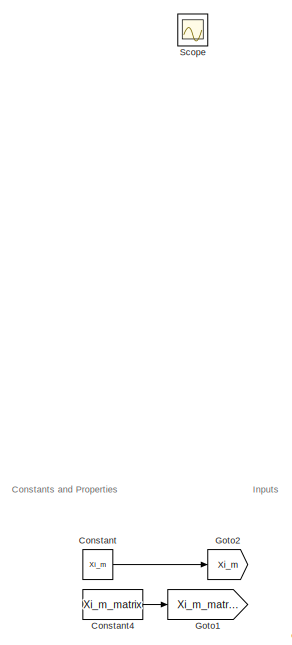
[diagram: root canvas - part 1/2, middle left region]
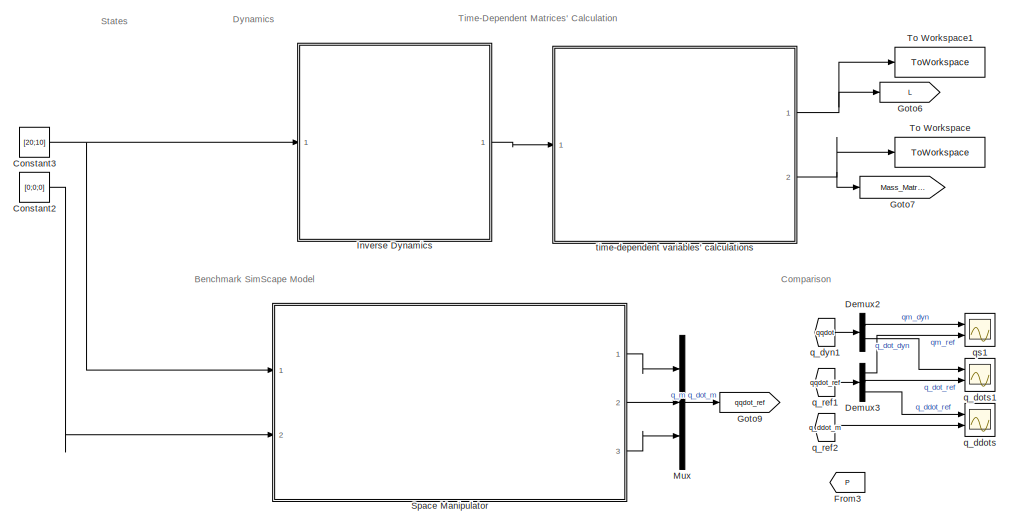
[diagram: root canvas - part 2/2, full width, bottom band]
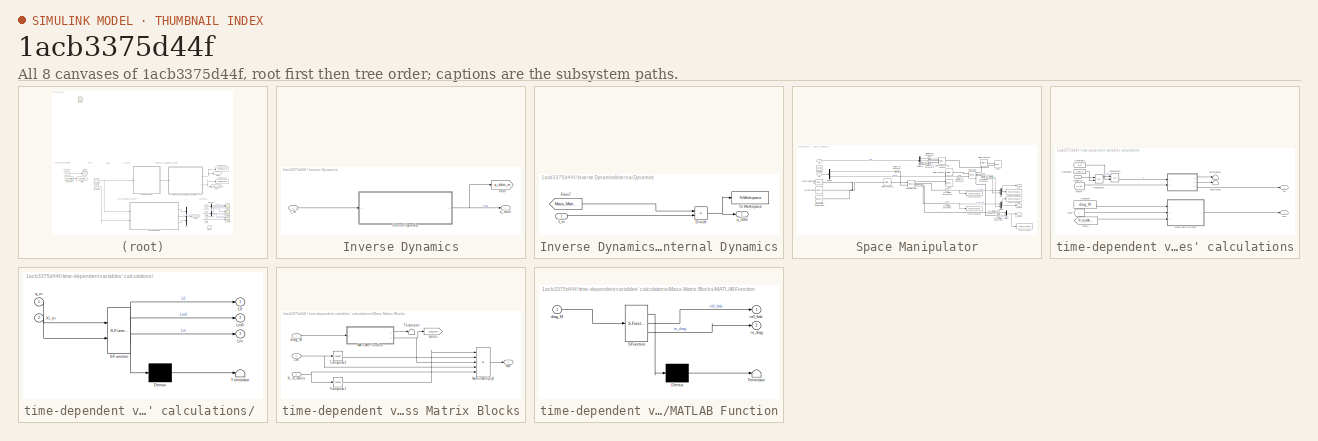
[diagram: thumbnail index - all 8 canvases of the model, root first then tree order]
MODEL slx_1acb3375d44f
KIND model
CONFIG AbsTol = auto
CONFIG EnableMultiTasking = off
CONFIG FixedStep = auto
CONFIG InitFcn = % ************** Initiate forces\n% f0=[0;0;0;0;0;0];\n% f0=[0;0;0;0;0;0;0];\nf_0=[0;0;0];\nf_m=[0;0];\nf_e=[0;0;0;0;0;0];\n% ************** Initiate states\nq_m=[0;0];\nq_dot_m=[0;0];\nP=[0;0;0];\nV_I0=[0;0;0];\n% ************** Load main\n%run(Main.m)
CONFIG MaxStep = auto
CONFIG MinStep = auto
CONFIG RelTol = 1e-3
CONFIG SampleTimeConstraint = Unconstrained
CONFIG SolverName = VariableStepAuto
CONFIG StartTime = 0.0
CONFIG StopTime = 5
BLOCK [Constant] Constant
  Value = Xi_m
  VectorParams1D = off
BLOCK [Constant] Constant2
  Value = [0;0;0]
  VectorParams1D = off
BLOCK [Constant] Constant3
  Value = [20;10]
  VectorParams1D = off
BLOCK [Constant] Constant4
  Value = Xi_m_matrix
  VectorParams1D = off
BLOCK [Demux] Demux2
  Outputs = 2
  Ports = [1, 2]
BLOCK [Demux] Demux3
  Outputs = 3
  Ports = [1, 3]
BLOCK [From] From3
  Commented = on
  GotoTag = P
  TagVisibility = global
BLOCK [Goto] Goto1
  GotoTag = Xi_m_matrix
  TagVisibility = global
BLOCK [Goto] Goto2
  GotoTag = Xi_m
  TagVisibility = global
BLOCK [Goto] Goto6
  GotoTag = L
  TagVisibility = global
BLOCK [Goto] Goto7
  GotoTag = Mass_Matrix
  TagVisibility = global
BLOCK [Goto] Goto9
  GotoTag = qqdot_ref
  TagVisibility = global
BLOCK [SubSystem] Inverse Dynamics
  NameLocation = right
  Ports = [1, 1]
  RequestExecContextInheritance = off
BLOCK [Goto] Inverse Dynamics/Goto
  GotoTag = q_ddot_m
  TagVisibility = global
BLOCK [SubSystem] Inverse Dynamics/Internal Dynamics
  Ports = [1, 1]
  RequestExecContextInheritance = off
BLOCK [Product] Inverse Dynamics/Internal Dynamics/Divide
  Inputs = /*
  Multiplication = Matrix(*)
  Ports = [2, 1]
BLOCK [From] Inverse Dynamics/Internal Dynamics/From7
  GotoTag = Mass_Matrix
  TagVisibility = global
BLOCK [ToWorkspace] Inverse Dynamics/Internal Dynamics/To Workspace
  FixptAsFi = on
  MaxDataPoints = inf
  Ports = [1]
  SampleTime = -1
  SaveFormat = Timeseries
  VariableName = qddot
BLOCK [Inport] Inverse Dynamics/Internal Dynamics/f_m
BLOCK [Outport] Inverse Dynamics/Internal Dynamics/q_ddot
BLOCK [Inport] Inverse Dynamics/f_m
BLOCK [Outport] Inverse Dynamics/q_ddot
BLOCK [Mux] Mux
  DisplayOption = bar
  Inputs = 3
  Ports = [3, 1]
BLOCK [Scope] Scope
  Floating = off
  IOType = viewer
  NumInputPorts = 1
  Ports = []
  ScopeSpecificationString = Simulink.scopes.TimeScopeBlockCfg('CurrentConfiguration', extmgr.ConfigurationSet(extmgr.Configuration('Core','General UI',true),extmgr.Configuration('Core','Source UI',true),extmgr.Configuration('Sources','WiredSimulink',true),extmgr.Configuration('Visuals','Time Domain',true,'SerializedDisplays',{struct('MinYLimReal','-10','MaxYLimReal','10','YLabelReal','','MinYLimMag','0','MaxYLimMag','10','Le...<+777ch>
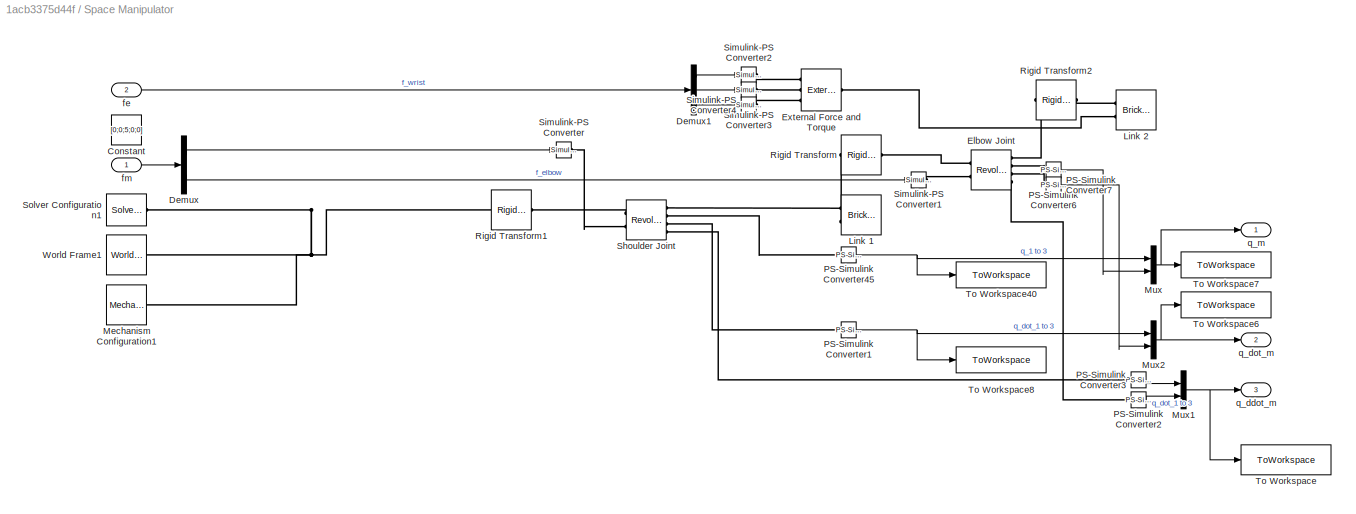
BLOCK [SubSystem] Space Manipulator
  Ports = [2, 3]
  RequestExecContextInheritance = off
BLOCK [Constant] Space Manipulator/Constant
  Commented = on
  Value = [0;0;5;0;0]
BLOCK [Demux] Space Manipulator/Demux
  Outputs = 2
  Ports = [1, 2]
BLOCK [Demux] Space Manipulator/Demux1
  Outputs = 3
  Ports = [1, 3]
BLOCK [Reference] Space Manipulator/Elbow Joint  REF=sm_lib/Joints/Revolute Joint
  Ports = [0, 0, 0, 0, 0, 2, 4]
  SourceBlock = sm_lib/Joints/Revolute Joint
  SourceProductBaseCode = MS
  SourceType = Revolute Joint
BLOCK [Reference] Space Manipulator/External Force and Torque  REF=sm_lib/Forces and
Torques/External Force
and Torque
  Ports = [0, 0, 0, 0, 0, 3, 1]
  SourceBlock = sm_lib/Forces and\nTorques/External Force\nand Torque
  SourceProductBaseCode = MS
  SourceType = External Force\nand Torque
BLOCK [Reference] Space Manipulator/Link 1   REF=sm_lib/Body Elements/Brick Solid
  Ports = [0, 0, 0, 0, 0, 2, 1]
  SourceBlock = sm_lib/Body Elements/Brick Solid
  SourceProductBaseCode = MS
  SourceType = Brick Solid
BLOCK [Reference] Space Manipulator/Link 2  REF=sm_lib/Body Elements/Brick Solid
  Ports = [0, 0, 0, 0, 0, 2, 1]
  SourceBlock = sm_lib/Body Elements/Brick Solid
  SourceProductBaseCode = MS
  SourceType = Brick Solid
BLOCK [Reference] Space Manipulator/Mechanism Configuration1  REF=sm_lib/Utilities/Mechanism
Configuration
  Ports = [0, 0, 0, 0, 0, 0, 1]
  SourceBlock = sm_lib/Utilities/Mechanism\nConfiguration
  SourceProductBaseCode = MS
  SourceType = Mechanism\nConfiguration
BLOCK [Mux] Space Manipulator/Mux
  DisplayOption = bar
  Inputs = 2
  Ports = [2, 1]
BLOCK [Mux] Space Manipulator/Mux1
  DisplayOption = bar
  Inputs = 2
  Ports = [2, 1]
BLOCK [Mux] Space Manipulator/Mux2
  DisplayOption = bar
  Inputs = 2
  Ports = [2, 1]
BLOCK [Reference] Space Manipulator/PS-Simulink Converter1  REF=nesl_utility/PS-Simulink
Converter
  Ports = [0, 1, 0, 0, 0, 1]
  SourceBlock = nesl_utility/PS-Simulink\nConverter
  SourceProductBaseCode = PW,SS
  SourceType = PS-Simulink\nConverter
BLOCK [Reference] Space Manipulator/PS-Simulink Converter2  REF=nesl_utility/PS-Simulink
Converter
  Ports = [0, 1, 0, 0, 0, 1]
  SourceBlock = nesl_utility/PS-Simulink\nConverter
  SourceProductBaseCode = PW,SS
  SourceType = PS-Simulink\nConverter
BLOCK [Reference] Space Manipulator/PS-Simulink Converter3  REF=nesl_utility/PS-Simulink
Converter
  Ports = [0, 1, 0, 0, 0, 1]
  SourceBlock = nesl_utility/PS-Simulink\nConverter
  SourceProductBaseCode = PW,SS
  SourceType = PS-Simulink\nConverter
BLOCK [Reference] Space Manipulator/PS-Simulink Converter45  REF=nesl_utility/PS-Simulink
Converter
  Ports = [0, 1, 0, 0, 0, 1]
  SourceBlock = nesl_utility/PS-Simulink\nConverter
  SourceProductBaseCode = PW,SS
  SourceType = PS-Simulink\nConverter
BLOCK [Reference] Space Manipulator/PS-Simulink Converter6  REF=nesl_utility/PS-Simulink
Converter
  Ports = [0, 1, 0, 0, 0, 1]
  SourceBlock = nesl_utility/PS-Simulink\nConverter
  SourceProductBaseCode = PW,SS
  SourceType = PS-Simulink\nConverter
BLOCK [Reference] Space Manipulator/PS-Simulink Converter7  REF=nesl_utility/PS-Simulink
Converter
  Ports = [0, 1, 0, 0, 0, 1]
  SourceBlock = nesl_utility/PS-Simulink\nConverter
  SourceProductBaseCode = PW,SS
  SourceType = PS-Simulink\nConverter
BLOCK [Reference] Space Manipulator/Rigid Transform  REF=sm_lib/Frames and
Transforms/Rigid
Transform
  Ports = [0, 0, 0, 0, 0, 1, 1]
  SourceBlock = sm_lib/Frames and\nTransforms/Rigid\nTransform
  SourceProductBaseCode = MS
  SourceType = Rigid\nTransform
BLOCK [Reference] Space Manipulator/Rigid Transform1  REF=sm_lib/Frames and
Transforms/Rigid
Transform
  Ports = [0, 0, 0, 0, 0, 1, 1]
  SourceBlock = sm_lib/Frames and\nTransforms/Rigid\nTransform
  SourceProductBaseCode = MS
  SourceType = Rigid\nTransform
BLOCK [Reference] Space Manipulator/Rigid Transform2  REF=sm_lib/Frames and
Transforms/Rigid
Transform
  Ports = [0, 0, 0, 0, 0, 1, 1]
  SourceBlock = sm_lib/Frames and\nTransforms/Rigid\nTransform
  SourceProductBaseCode = MS
  SourceType = Rigid\nTransform
BLOCK [Reference] Space Manipulator/Shoulder Joint  REF=sm_lib/Joints/Revolute Joint
  Ports = [0, 0, 0, 0, 0, 2, 4]
  SourceBlock = sm_lib/Joints/Revolute Joint
  SourceProductBaseCode = MS
  SourceType = Revolute Joint
BLOCK [Reference] Space Manipulator/Simulink-PS Converter  REF=nesl_utility/Simulink-PS
Converter
  Ports = [1, 0, 0, 0, 0, 0, 1]
  SourceBlock = nesl_utility/Simulink-PS\nConverter
  SourceProductBaseCode = PW,SS
  SourceType = Simulink-PS\nConverter
BLOCK [Reference] Space Manipulator/Simulink-PS Converter1  REF=nesl_utility/Simulink-PS
Converter
  Ports = [1, 0, 0, 0, 0, 0, 1]
  SourceBlock = nesl_utility/Simulink-PS\nConverter
  SourceProductBaseCode = PW,SS
  SourceType = Simulink-PS\nConverter
BLOCK [Reference] Space Manipulator/Simulink-PS Converter2  REF=nesl_utility/Simulink-PS
Converter
  Ports = [1, 0, 0, 0, 0, 0, 1]
  SourceBlock = nesl_utility/Simulink-PS\nConverter
  SourceProductBaseCode = PW,SS
  SourceType = Simulink-PS\nConverter
BLOCK [Reference] Space Manipulator/Simulink-PS Converter3  REF=nesl_utility/Simulink-PS
Converter
  Ports = [1, 0, 0, 0, 0, 0, 1]
  SourceBlock = nesl_utility/Simulink-PS\nConverter
  SourceProductBaseCode = PW,SS
  SourceType = Simulink-PS\nConverter
BLOCK [Reference] Space Manipulator/Simulink-PS Converter4  REF=nesl_utility/Simulink-PS
Converter
  Ports = [1, 0, 0, 0, 0, 0, 1]
  SourceBlock = nesl_utility/Simulink-PS\nConverter
  SourceProductBaseCode = PW,SS
  SourceType = Simulink-PS\nConverter
BLOCK [Reference] Space Manipulator/Solver Configuration1  REF=nesl_utility/Solver
Configuration
  Ports = [0, 0, 0, 0, 0, 0, 1]
  SourceBlock = nesl_utility/Solver\nConfiguration
  SourceProductBaseCode = PW,SS
  SourceType = Solver\nConfiguration
BLOCK [ToWorkspace] Space Manipulator/To Workspace
  FixptAsFi = on
  MaxDataPoints = inf
  Ports = [1]
  SampleTime = -1
  SaveFormat = Timeseries
  VariableName = qddot_ref
BLOCK [ToWorkspace] Space Manipulator/To Workspace40
  FixptAsFi = on
  MaxDataPoints = inf
  Ports = [1]
  SampleTime = -1
  VariableName = q_shoulder
BLOCK [ToWorkspace] Space Manipulator/To Workspace6
  FixptAsFi = on
  MaxDataPoints = inf
  Ports = [1]
  SampleTime = -1
  VariableName = q_dot_m
BLOCK [ToWorkspace] Space Manipulator/To Workspace7
  FixptAsFi = on
  MaxDataPoints = inf
  Ports = [1]
  SampleTime = -1
  VariableName = q_m
BLOCK [ToWorkspace] Space Manipulator/To Workspace8
  FixptAsFi = on
  MaxDataPoints = inf
  Ports = [1]
  SampleTime = -1
  VariableName = q_dot_shoulder
BLOCK [Reference] Space Manipulator/World Frame1  REF=sm_lib/Frames and
Transforms/World Frame
  Ports = [0, 0, 0, 0, 0, 0, 1]
  SourceBlock = sm_lib/Frames and\nTransforms/World Frame
  SourceProductBaseCode = MS
  SourceType = World Frame
BLOCK [Inport] Space Manipulator/fe
  Port = 2
BLOCK [Inport] Space Manipulator/fm
BLOCK [Outport] Space Manipulator/q_ddot_m
  Port = 3
BLOCK [Outport] Space Manipulator/q_dot_m
  Port = 2
BLOCK [Outport] Space Manipulator/q_m
BLOCK [ToWorkspace] To Workspace
  FixptAsFi = on
  MaxDataPoints = inf
  Ports = [1]
  SampleTime = -1
  SaveFormat = Timeseries
  VariableName = simout2
BLOCK [ToWorkspace] To Workspace1
  FixptAsFi = on
  MaxDataPoints = inf
  Ports = [1]
  SampleTime = -1
  SaveFormat = Timeseries
  VariableName = simout3
BLOCK [Scope] q_ddots
  Floating = off
  NumInputPorts = 2
  Ports = [2]
  ScopeSpecificationString = Simulink.scopes.TimeScopeBlockCfg('CurrentConfiguration', extmgr.ConfigurationSet(extmgr.Configuration('Core','General UI',true),extmgr.Configuration('Core','Source UI',true),extmgr.Configuration('Sources','WiredSimulink',true,'DataLoggingVariableName','ScopeData3'),extmgr.Configuration('Visuals','Time Domain',true,'SerializedDisplays',{struct('MinYLimReal','-0.18516','MaxYLimReal','1.66646','YLab...<+1602ch>
BLOCK [Scope] q_dots1
  Floating = off
  NumInputPorts = 2
  Ports = [2]
  ScopeSpecificationString = Simulink.scopes.TimeScopeBlockCfg('CurrentConfiguration', extmgr.ConfigurationSet(extmgr.Configuration('Core','General UI',true),extmgr.Configuration('Core','Source UI',true),extmgr.Configuration('Sources','WiredSimulink',true,'DataLoggingVariableName','ScopeData1'),extmgr.Configuration('Visuals','Time Domain',true,'SerializedDisplays',{struct('MinYLimReal','-1.15726','MaxYLimReal','10.41538','YLa...<+1555ch>
BLOCK [From] q_dyn1
  GotoTag = qqdot
BLOCK [From] q_ref1
  GotoTag = qqdot_ref
  TagVisibility = global
BLOCK [From] q_ref2
  GotoTag = q_ddot_m
  TagVisibility = global
BLOCK [Scope] qs1
  Floating = off
  NumInputPorts = 2
  Ports = [2]
  ScopeSpecificationString = Simulink.scopes.TimeScopeBlockCfg('CurrentConfiguration', extmgr.ConfigurationSet(extmgr.Configuration('Core','General UI',true),extmgr.Configuration('Core','Source UI',true),extmgr.Configuration('Sources','WiredSimulink',true,'DataLoggingVariableName','ScopeData2'),extmgr.Configuration('Visuals','Time Domain',true,'SerializedDisplays',{struct('MinYLimReal','-1.55434','MaxYLimReal','5.17242','YLab...<+1582ch>
BLOCK [SubSystem] time-dependent variables' calculations
  Ports = [1, 2]
  RequestExecContextInheritance = off
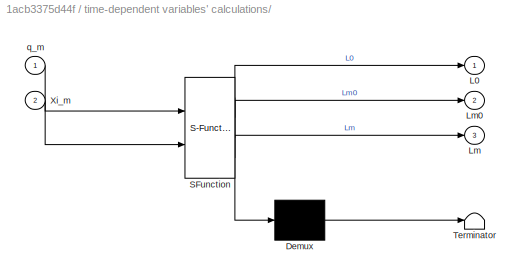
BLOCK [SubSystem] time-dependent variables' calculations/ 
  ErrorFcn = Stateflow.Translate.translate
  PermitHierarchicalResolution = ExplicitOnly
  Ports = [2, 3]
  RequestExecContextInheritance = off
  SFBlockType = MATLAB Function
  TreatAsAtomicUnit = on
BLOCK [Demux] time-dependent variables' calculations/ / Demux 
  Outputs = 1
  Ports = [1, 1]
BLOCK [S-Function] time-dependent variables' calculations/ / SFunction 
  EnableBusSupport = on
  FunctionName = sf_sfun
  PortCounts = [2 4]
  Ports = [2, 4]
  SFcnIsStateOwnerBlock = off
  SFunctionDeploymentMode = off
  Tag = Stateflow S-Function 34
BLOCK [Terminator] time-dependent variables' calculations/ / Terminator 
BLOCK [Outport] time-dependent variables' calculations/ /L0
BLOCK [Outport] time-dependent variables' calculations/ /Lm
  Port = 3
BLOCK [Outport] time-dependent variables' calculations/ /Lm0
  Port = 2
BLOCK [Inport] time-dependent variables' calculations/ /Xi_m
  Port = 2
BLOCK [Inport] time-dependent variables' calculations/ /q_m
BLOCK [Constant] time-dependent variables' calculations/Constant
  Value = diag_M
  VectorParams1D = off
BLOCK [Constant] time-dependent variables' calculations/Constant1
  Value = q_dot_m
  VectorParams1D = off
BLOCK [Constant] time-dependent variables' calculations/Constant2
  Value = q_m
  VectorParams1D = off
BLOCK [From] time-dependent variables' calculations/From
  GotoTag = L
  TagVisibility = global
BLOCK [From] time-dependent variables' calculations/From1
  GotoTag = Xi_m_matrix
  TagVisibility = global
BLOCK [From] time-dependent variables' calculations/From4
  GotoTag = Xi_m
  TagVisibility = global
BLOCK [Integrator] time-dependent variables' calculations/Integrator2
  InitialCondition = q_dot_m
  InitialConditionSource = external
  Ports = [2, 1]
BLOCK [Integrator] time-dependent variables' calculations/Integrator3
  InitialConditionSource = external
  Ports = [2, 1]
BLOCK [Outport] time-dependent variables' calculations/Lm
BLOCK [SubSystem] time-dependent variables' calculations/Mass Matrix Blocks
  Ports = [3, 1]
  RequestExecContextInheritance = off
BLOCK [Goto] time-dependent variables' calculations/Mass Matrix Blocks/Goto5
  GotoTag = diag_Mm
  TagVisibility = global
BLOCK [Inport] time-dependent variables' calculations/Mass Matrix Blocks/Lm
  Port = 2
BLOCK [SubSystem] time-dependent variables' calculations/Mass Matrix Blocks/MATLAB Function
  ErrorFcn = Stateflow.Translate.translate
  PermitHierarchicalResolution = ExplicitOnly
  Ports = [1, 2]
  RequestExecContextInheritance = off
  SFBlockType = MATLAB Function
  TreatAsAtomicUnit = on
BLOCK [Demux] time-dependent variables' calculations/Mass Matrix Blocks/MATLAB Function/ Demux 
  Outputs = 1
  Ports = [1, 1]
BLOCK [S-Function] time-dependent variables' calculations/Mass Matrix Blocks/MATLAB Function/ SFunction 
  EnableBusSupport = on
  FunctionName = sf_sfun
  PortCounts = [1 3]
  Ports = [1, 3]
  SFcnIsStateOwnerBlock = off
  SFunctionDeploymentMode = off
  Tag = Stateflow S-Function 40
BLOCK [Terminator] time-dependent variables' calculations/Mass Matrix Blocks/MATLAB Function/ Terminator 
BLOCK [Inport] time-dependent variables' calculations/Mass Matrix Blocks/MATLAB Function/diag_M
BLOCK [Outport] time-dependent variables' calculations/Mass Matrix Blocks/MATLAB Function/m0_frak
BLOCK [Outport] time-dependent variables' calculations/Mass Matrix Blocks/MATLAB Function/m_diag
  Port = 2
BLOCK [Product] time-dependent variables' calculations/Mass Matrix Blocks/Matrix Multiply2
  Inputs = 5
  Multiplication = Matrix(*)
  Ports = [5, 1]
BLOCK [Outport] time-dependent variables' calculations/Mass Matrix Blocks/Mm
BLOCK [Terminator] time-dependent variables' calculations/Mass Matrix Blocks/Terminator
BLOCK [Math] time-dependent variables' calculations/Mass Matrix Blocks/Transpose1
  Operator = transpose
  Ports = [1, 1]
BLOCK [Math] time-dependent variables' calculations/Mass Matrix Blocks/Transpose2
  Operator = transpose
  Ports = [1, 1]
BLOCK [Inport] time-dependent variables' calculations/Mass Matrix Blocks/Xi_m_matrix
  Port = 3
BLOCK [Inport] time-dependent variables' calculations/Mass Matrix Blocks/diag_M
BLOCK [Outport] time-dependent variables' calculations/Mm
  Port = 2
BLOCK [Terminator] time-dependent variables' calculations/Terminator
BLOCK [Terminator] time-dependent variables' calculations/Terminator1
BLOCK [Inport] time-dependent variables' calculations/q_ddot_m
ANNOTATION (root): Benchmark SimScape Model
ANNOTATION (root): Comparison
ANNOTATION (root): Constants and Properties
ANNOTATION (root): Dynamics
ANNOTATION (root): Inputs
ANNOTATION (root): States
ANNOTATION (root): Time-Dependent Matrices' Calculation
LINE Constant2:1 -> Space Manipulator:2
NET Constant3:1 -> Inverse Dynamics:1, Space Manipulator:1
LINE Constant4:1 -> Goto1:1
LINE Constant:1 -> Goto2:1
LINE Demux2:1 -> qs1:1
LINE Demux2:2 -> q_dots1:1
LINE Demux3:1 -> qs1:2
LINE Demux3:2 -> q_dots1:2
LINE Demux3:3 -> q_ddots:1
NET Inverse Dynamics/Internal Dynamics/Divide:1 -> Inverse Dynamics/Internal Dynamics/To Workspace:1, Inverse Dynamics/Internal Dynamics/q_ddot:1
LINE Inverse Dynamics/Internal Dynamics/From7:1 -> Inverse Dynamics/Internal Dynamics/Divide:1
LINE Inverse Dynamics/Internal Dynamics/f_m:1 -> Inverse Dynamics/Internal Dynamics/Divide:2
NET Inverse Dynamics/Internal Dynamics:1 -> Inverse Dynamics/Goto:1, Inverse Dynamics/q_ddot:1
LINE Inverse Dynamics/f_m:1 -> Inverse Dynamics/Internal Dynamics:1
LINE Inverse Dynamics:1 -> time-dependent variables' calculations:1
LINE Mux:1 -> Goto9:1
LINE Space Manipulator/Demux1:1 -> Space Manipulator/Simulink-PS Converter2:1
LINE Space Manipulator/Demux1:2 -> Space Manipulator/Simulink-PS Converter3:1
LINE Space Manipulator/Demux1:3 -> Space Manipulator/Simulink-PS Converter4:1
LINE Space Manipulator/Demux:1 -> Space Manipulator/Simulink-PS Converter:1
LINE Space Manipulator/Demux:2 -> Space Manipulator/Simulink-PS Converter1:1
NET Space Manipulator/Mux1:1 -> Space Manipulator/To Workspace:1, Space Manipulator/q_ddot_m:1
NET Space Manipulator/Mux2:1 -> Space Manipulator/To Workspace6:1, Space Manipulator/q_dot_m:1
NET Space Manipulator/Mux:1 -> Space Manipulator/To Workspace7:1, Space Manipulator/q_m:1
NET Space Manipulator/PS-Simulink Converter1:1 -> Space Manipulator/Mux2:1, Space Manipulator/To Workspace8:1
LINE Space Manipulator/PS-Simulink Converter2:1 -> Space Manipulator/Mux1:2
LINE Space Manipulator/PS-Simulink Converter3:1 -> Space Manipulator/Mux1:1
NET Space Manipulator/PS-Simulink Converter45:1 -> Space Manipulator/Mux:1, Space Manipulator/To Workspace40:1
LINE Space Manipulator/PS-Simulink Converter6:1 -> Space Manipulator/Mux:2
LINE Space Manipulator/PS-Simulink Converter7:1 -> Space Manipulator/Mux2:2
LINE Space Manipulator/fe:1 -> Space Manipulator/Demux1:1
LINE Space Manipulator/fm:1 -> Space Manipulator/Demux:1
LINE Space Manipulator:1 -> Mux:1
LINE Space Manipulator:2 -> Mux:2
LINE Space Manipulator:3 -> Mux:3
LINE q_dyn1:1 -> Demux2:1
LINE q_ref1:1 -> Demux3:1
LINE q_ref2:1 -> q_ddots:2
LINE time-dependent variables' calculations/ :1 -> time-dependent variables' calculations/Terminator1:1
LINE time-dependent variables' calculations/ :2 -> time-dependent variables' calculations/Terminator:1
LINE time-dependent variables' calculations/ :3 -> time-dependent variables' calculations/Lm:1
LINE time-dependent variables' calculations/Constant1:1 -> time-dependent variables' calculations/Integrator2:2
LINE time-dependent variables' calculations/Constant2:1 -> time-dependent variables' calculations/Integrator3:2
LINE time-dependent variables' calculations/Constant:1 -> time-dependent variables' calculations/Mass Matrix Blocks:1
LINE time-dependent variables' calculations/From1:1 -> time-dependent variables' calculations/Mass Matrix Blocks:3
LINE time-dependent variables' calculations/From4:1 -> time-dependent variables' calculations/ :2
LINE time-dependent variables' calculations/From:1 -> time-dependent variables' calculations/Mass Matrix Blocks:2
LINE time-dependent variables' calculations/Integrator2:1 -> time-dependent variables' calculations/Integrator3:1
LINE time-dependent variables' calculations/Integrator3:1 -> time-dependent variables' calculations/ :1
NET time-dependent variables' calculations/Mass Matrix Blocks/Lm:1 -> time-dependent variables' calculations/Mass Matrix Blocks/Matrix Multiply2:4, time-dependent variables' calculations/Mass Matrix Blocks/Transpose2:1
LINE time-dependent variables' calculations/Mass Matrix Blocks/MATLAB Function:1 -> time-dependent variables' calculations/Mass Matrix Blocks/Terminator:1
NET time-dependent variables' calculations/Mass Matrix Blocks/MATLAB Function:2 -> time-dependent variables' calculations/Mass Matrix Blocks/Goto5:1, time-dependent variables' calculations/Mass Matrix Blocks/Matrix Multiply2:3
LINE time-dependent variables' calculations/Mass Matrix Blocks/Matrix Multiply2:1 -> time-dependent variables' calculations/Mass Matrix Blocks/Mm:1
LINE time-dependent variables' calculations/Mass Matrix Blocks/Transpose1:1 -> time-dependent variables' calculations/Mass Matrix Blocks/Matrix Multiply2:1
LINE time-dependent variables' calculations/Mass Matrix Blocks/Transpose2:1 -> time-dependent variables' calculations/Mass Matrix Blocks/Matrix Multiply2:2
NET time-dependent variables' calculations/Mass Matrix Blocks/Xi_m_matrix:1 -> time-dependent variables' calculations/Mass Matrix Blocks/Matrix Multiply2:5, time-dependent variables' calculations/Mass Matrix Blocks/Transpose1:1
LINE time-dependent variables' calculations/Mass Matrix Blocks/diag_M:1 -> time-dependent variables' calculations/Mass Matrix Blocks/MATLAB Function:1
LINE time-dependent variables' calculations/Mass Matrix Blocks:1 -> time-dependent variables' calculations/Mm:1
LINE time-dependent variables' calculations/q_ddot_m:1 -> time-dependent variables' calculations/Integrator2:1
NET time-dependent variables' calculations:1 -> Goto6:1, To Workspace1:1
NET time-dependent variables' calculations:2 -> Goto7:1, To Workspace:1
PLINE Space Manipulator/Elbow Joint:LConn1 -- Space Manipulator/Rigid Transform:RConn1
PLINE Space Manipulator/Elbow Joint:LConn2 -- Space Manipulator/Simulink-PS Converter1:RConn1
PLINE Space Manipulator/Elbow Joint:RConn1 -- Space Manipulator/Rigid Transform2:LConn1
PLINE Space Manipulator/Elbow Joint:RConn2 -- Space Manipulator/PS-Simulink Converter6:LConn1
PLINE Space Manipulator/Elbow Joint:RConn3 -- Space Manipulator/PS-Simulink Converter7:LConn1
PLINE Space Manipulator/Elbow Joint:RConn4 -- Space Manipulator/PS-Simulink Converter2:LConn1
PLINE Space Manipulator/External Force and Torque:LConn1 -- Space Manipulator/Simulink-PS Converter2:RConn1
PLINE Space Manipulator/External Force and Torque:LConn2 -- Space Manipulator/Simulink-PS Converter3:RConn1
PLINE Space Manipulator/External Force and Torque:LConn3 -- Space Manipulator/Simulink-PS Converter4:RConn1
PLINE Space Manipulator/External Force and Torque:RConn1 -- Space Manipulator/Link 2:LConn2
PLINE Space Manipulator/Link 1 :LConn1 -- Space Manipulator/Shoulder Joint:RConn1
PLINE Space Manipulator/Link 1 :LConn2 -- Space Manipulator/Rigid Transform:LConn1
PLINE Space Manipulator/Link 2:LConn1 -- Space Manipulator/Rigid Transform2:RConn1
PNET net1: Space Manipulator/Mechanism Configuration1:RConn1 -- Space Manipulator/Rigid Transform1:LConn1 -- Space Manipulator/Solver Configuration1:RConn1 -- Space Manipulator/World Frame1:RConn1
PLINE Space Manipulator/PS-Simulink Converter1:LConn1 -- Space Manipulator/Shoulder Joint:RConn3
PLINE Space Manipulator/PS-Simulink Converter3:LConn1 -- Space Manipulator/Shoulder Joint:RConn4
PLINE Space Manipulator/PS-Simulink Converter45:LConn1 -- Space Manipulator/Shoulder Joint:RConn2
PLINE Space Manipulator/Rigid Transform1:RConn1 -- Space Manipulator/Shoulder Joint:LConn1
PLINE Space Manipulator/Shoulder Joint:LConn2 -- Space Manipulator/Simulink-PS Converter:RConn1
note: NET lines group one-source signal fan-out (src -> all destinations, sorted); 1:1 wires keep LINE; PNET lines group multi-terminal physical nets as a canonical sorted terminal list (undirected conserving connections); 2-terminal nets keep the pairwise PLINE form
CHART time-dependent variables' calculations/  states=1 transitions=1
  STATE_LABEL 'eML_blk_kernel()'
  STATE_LABEL 'SCRIPT:\nfunction [L0,Lm0,Lm] =L_calculator(q_m,Xi_m)\n% Calculates the time-dependent L matrix\nn=length(q_m);\nL=zeros(6*(n+1),6*(n+1));\n% Compute M_frak for ith body\n% Calculate L matrix\nfor i=1:n+1\n    for j=1:n+1\n        if i>j\n            Ad_temp=eye(6);\n            for k=j:i-1\n                Ad_temp=Adjoint(g_Matrix(-Xi_m(:,k),q_m(k)))*Ad_temp;\n            end\n            L(6*(i-1)+1:6*(i-1)+6...<+279ch>'
CHART time-dependent variables' calculations/Mass Matrix Blocks/MATLAB Function states=1 transitions=1
  STATE_LABEL 'eML_blk_kernel()'
  STATE_LABEL 'SCRIPT:\nfunction [m0_frak,m_diag]=m_frak_decomp(diag_M)\n% Compute the Mass Matrix of the multibody system.\n%   Output:\n%   M0      Spacecraft mass matrix \n%   M0m\n%   Mm      Manipulator mass matrix\n\n%n=length(q_m);\n\nm0_frak=diag_M(1:6,1:6);\nm_diag=diag_M(7:end,7:end);'
CHART  states=0 transitions=0
CHART  states=0 transitions=0
